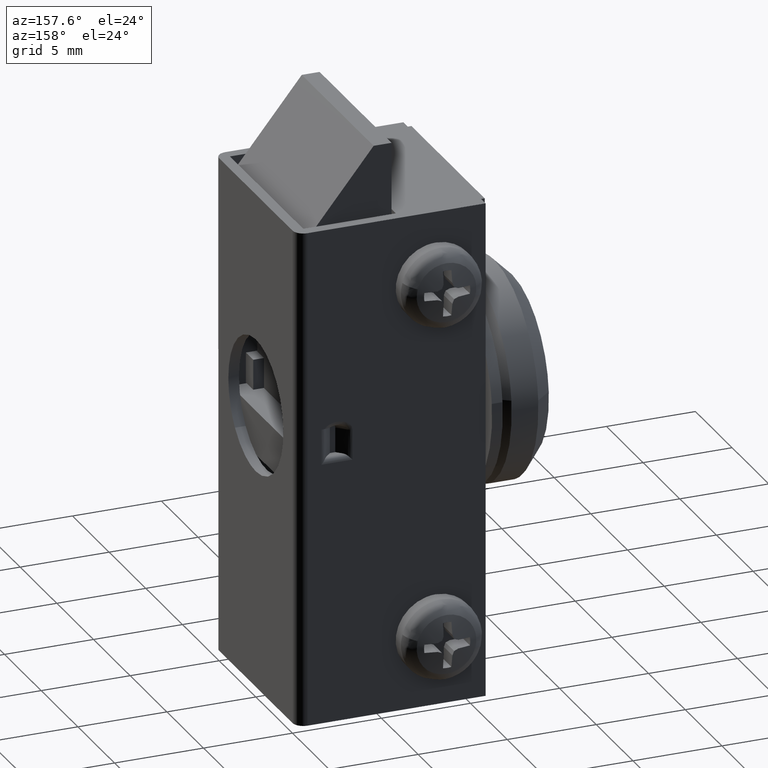
[diagram: clean part render]
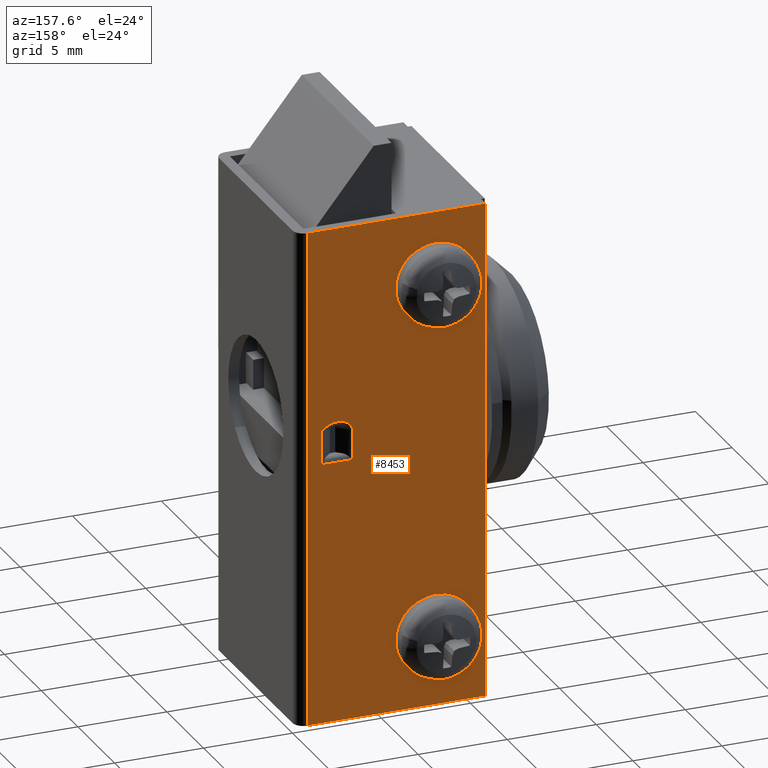
[diagram: same view with one face highlighted and labeled with its STEP entity id]
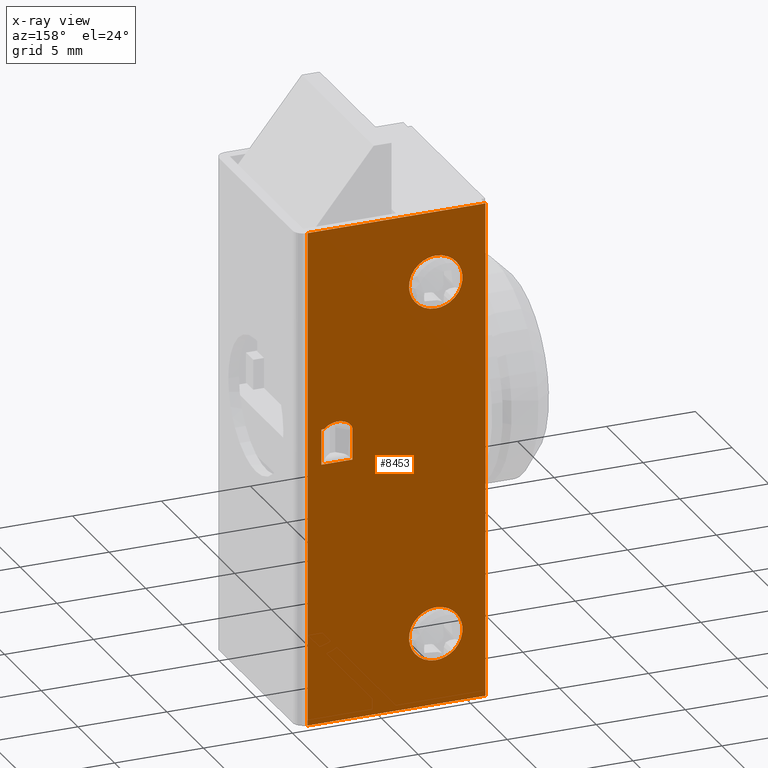
[diagram: x-ray of the same camera — body ghosted, the highlighted face saturated]
A machine part, auxiliary view. The second image highlights one B-rep face of the part: STEP entity #8453.
The next image is the same camera in x-ray: the body ghosted, the highlighted face saturated — about 0% of this face is hidden behind the body in this view.
In plain terms, the highlighted face is a freeform B-spline surface patch.
Its self-contained STEP definition (entity closure, byte-faithful):
#6009=CARTESIAN_POINT('',(-6.302784802369668,5.599990000000000,23.908427190655210));
#6010=VERTEX_POINT('',#6009);
#6016=CARTESIAN_POINT('',(-7.799986999999869,5.599990000000000,22.500000000000000));
#6017=VERTEX_POINT('',#6016);
#6018=CARTESIAN_POINT('',(-7.799986999999869,5.599990000000000,22.500000000000000));
#6019=CARTESIAN_POINT('',(-6.388927899721585,5.599990000000002,22.499999999999993));
#6020=CARTESIAN_POINT('',(-6.302784802369668,5.599990000000001,23.908427190655217));
#6028=(BOUNDED_CURVE()B_SPLINE_CURVE(2,(#6018,#6019,#6020),.UNSPECIFIED.,.F.,.U.)B_SPLINE_CURVE_WITH_KNOTS((3,3),(0.500000000000000,0.739332962232173),.UNSPECIFIED.)CURVE()GEOMETRIC_REPRESENTATION_ITEM()RATIONAL_B_SPLINE_CURVE((1.0,0.719603993294642,0.976072041652208))REPRESENTATION_ITEM(''));
#6029=EDGE_CURVE('',#6017,#6010,#6028,.T.);
#6031=CARTESIAN_POINT('',(-9.289501289544546,5.599990000000000,24.177051351992048));
#6032=VERTEX_POINT('',#6031);
#6033=CARTESIAN_POINT('',(-9.289501289544546,5.599990000000000,24.177051351992056));
#6034=CARTESIAN_POINT('',(-9.299986999999868,5.599989999999999,24.088836179484847));
#6035=CARTESIAN_POINT('',(-9.299986999999868,5.599990000000000,24.0));
#6036=CARTESIAN_POINT('',(-9.299986999999868,5.599990000000001,22.500000000000000));
#6037=CARTESIAN_POINT('',(-7.799986999999869,5.599990000000000,22.500000000000000));
#6045=(BOUNDED_CURVE()B_SPLINE_CURVE(2,(#6033,#6034,#6035,#6036,#6037),.UNSPECIFIED.,.F.,.U.)B_SPLINE_CURVE_WITH_KNOTS((3,2,3),(0.229562473514075,0.250000000000000,0.500000000000000),.UNSPECIFIED.)CURVE()GEOMETRIC_REPRESENTATION_ITEM()RATIONAL_B_SPLINE_CURVE((0.956026754184811,0.976055948331809,1.0,0.707106781186548,1.0))REPRESENTATION_ITEM(''));
#6046=EDGE_CURVE('',#6032,#6017,#6045,.T.);
#6090=CARTESIAN_POINT('',(-7.799986999999869,5.599990000000000,25.500000000000000));
#6091=VERTEX_POINT('',#6090);
#6092=CARTESIAN_POINT('',(-7.799986999999869,5.599990000000000,25.500000000000000));
#6093=CARTESIAN_POINT('',(-9.132248788914465,5.599990000000000,25.500000000000011));
#6094=CARTESIAN_POINT('',(-9.289501289544546,5.599990000000000,24.177051351992056));
#6102=(BOUNDED_CURVE()B_SPLINE_CURVE(2,(#6092,#6093,#6094),.UNSPECIFIED.,.F.,.U.)B_SPLINE_CURVE_WITH_KNOTS((3,3),(0.0,0.229562473514075),.UNSPECIFIED.)CURVE()GEOMETRIC_REPRESENTATION_ITEM()RATIONAL_B_SPLINE_CURVE((1.0,0.731050832854738,0.956026754184811))REPRESENTATION_ITEM(''));
#6103=EDGE_CURVE('',#6091,#6032,#6102,.T.);
#6105=CARTESIAN_POINT('',(-6.302784802369668,5.599990000000000,23.908427190655217));
#6106=CARTESIAN_POINT('',(-6.299986999999869,5.599990000000000,23.954170855009501));
#6107=CARTESIAN_POINT('',(-6.299986999999870,5.599990000000000,24.0));
#6108=CARTESIAN_POINT('',(-6.299986999999871,5.599990000000001,25.500000000000007));
#6109=CARTESIAN_POINT('',(-7.799986999999869,5.599990000000000,25.500000000000000));
#6117=(BOUNDED_CURVE()B_SPLINE_CURVE(2,(#6105,#6106,#6107,#6108,#6109),.UNSPECIFIED.,.F.,.U.)B_SPLINE_CURVE_WITH_KNOTS((3,2,3),(0.739332962232172,0.750000000000000,1.0),.UNSPECIFIED.)CURVE()GEOMETRIC_REPRESENTATION_ITEM()RATIONAL_B_SPLINE_CURVE((0.976072041652207,0.987502787891905,1.0,0.707106781186548,1.0))REPRESENTATION_ITEM(''));
#6118=EDGE_CURVE('',#6010,#6091,#6117,.T.);
#6381=CARTESIAN_POINT('',(-6.302784802369668,5.599990000000000,3.908427190655329));
#6382=VERTEX_POINT('',#6381);
#6388=CARTESIAN_POINT('',(-7.799986999999869,5.599990000000000,2.500000000000116));
#6389=VERTEX_POINT('',#6388);
#6390=CARTESIAN_POINT('',(-7.799986999999869,5.599990000000000,2.500000000000116));
#6391=CARTESIAN_POINT('',(-6.388927899721585,5.599990000000002,2.500000000000116));
#6392=CARTESIAN_POINT('',(-6.302784802369668,5.599990000000001,3.908427190655329));
#6400=(BOUNDED_CURVE()B_SPLINE_CURVE(2,(#6390,#6391,#6392),.UNSPECIFIED.,.F.,.U.)B_SPLINE_CURVE_WITH_KNOTS((3,3),(0.500000000000000,0.739332962232173),.UNSPECIFIED.)CURVE()GEOMETRIC_REPRESENTATION_ITEM()RATIONAL_B_SPLINE_CURVE((1.0,0.719603993294642,0.976072041652208))REPRESENTATION_ITEM(''));
#6401=EDGE_CURVE('',#6389,#6382,#6400,.T.);
#6403=CARTESIAN_POINT('',(-9.289501289544546,5.599990000000000,4.177051351992168));
#6404=VERTEX_POINT('',#6403);
#6405=CARTESIAN_POINT('',(-9.289501289544546,5.599990000000000,4.177051351992168));
#6406=CARTESIAN_POINT('',(-9.299986999999868,5.599989999999999,4.088836179484967));
#6407=CARTESIAN_POINT('',(-9.299986999999868,5.599990000000000,4.000000000000116));
#6408=CARTESIAN_POINT('',(-9.299986999999868,5.599990000000001,2.500000000000116));
#6409=CARTESIAN_POINT('',(-7.799986999999869,5.599990000000000,2.500000000000116));
#6417=(BOUNDED_CURVE()B_SPLINE_CURVE(2,(#6405,#6406,#6407,#6408,#6409),.UNSPECIFIED.,.F.,.U.)B_SPLINE_CURVE_WITH_KNOTS((3,2,3),(0.229562473514075,0.250000000000000,0.500000000000000),.UNSPECIFIED.)CURVE()GEOMETRIC_REPRESENTATION_ITEM()RATIONAL_B_SPLINE_CURVE((0.956026754184811,0.976055948331809,1.0,0.707106781186548,1.0))REPRESENTATION_ITEM(''));
#6418=EDGE_CURVE('',#6404,#6389,#6417,.T.);
#6462=CARTESIAN_POINT('',(-7.799986999999869,5.599990000000000,5.500000000000116));
#6463=VERTEX_POINT('',#6462);
#6464=CARTESIAN_POINT('',(-7.799986999999869,5.599990000000000,5.500000000000116));
#6465=CARTESIAN_POINT('',(-9.132248788914465,5.599990000000000,5.500000000000116));
#6466=CARTESIAN_POINT('',(-9.289501289544546,5.599990000000000,4.177051351992168));
#6474=(BOUNDED_CURVE()B_SPLINE_CURVE(2,(#6464,#6465,#6466),.UNSPECIFIED.,.F.,.U.)B_SPLINE_CURVE_WITH_KNOTS((3,3),(0.0,0.229562473514075),.UNSPECIFIED.)CURVE()GEOMETRIC_REPRESENTATION_ITEM()RATIONAL_B_SPLINE_CURVE((1.0,0.731050832854738,0.956026754184811))REPRESENTATION_ITEM(''));
#6475=EDGE_CURVE('',#6463,#6404,#6474,.T.);
#6477=CARTESIAN_POINT('',(-6.302784802369668,5.599990000000000,3.908427190655329));
#6478=CARTESIAN_POINT('',(-6.299986999999869,5.599990000000000,3.954170855009613));
#6479=CARTESIAN_POINT('',(-6.299986999999870,5.599990000000000,4.000000000000116));
#6480=CARTESIAN_POINT('',(-6.299986999999871,5.599990000000001,5.500000000000115));
#6481=CARTESIAN_POINT('',(-7.799986999999869,5.599990000000000,5.500000000000116));
#6489=(BOUNDED_CURVE()B_SPLINE_CURVE(2,(#6477,#6478,#6479,#6480,#6481),.UNSPECIFIED.,.F.,.U.)B_SPLINE_CURVE_WITH_KNOTS((3,2,3),(0.739332962232172,0.750000000000000,1.0),.UNSPECIFIED.)CURVE()GEOMETRIC_REPRESENTATION_ITEM()RATIONAL_B_SPLINE_CURVE((0.976072041652207,0.987502787891905,1.0,0.707106781186548,1.0))REPRESENTATION_ITEM(''));
#6490=EDGE_CURVE('',#6382,#6463,#6489,.T.);
#7018=CARTESIAN_POINT('',(-1.375751931288174,5.599990000000000,14.700000000000159));
#7019=VERTEX_POINT('',#7018);
#7033=CARTESIAN_POINT('',(-3.124248068711715,5.599990000000000,14.700000000000159));
#7034=VERTEX_POINT('',#7033);
#7035=CARTESIAN_POINT('',(-3.124248068711715,5.599990000000000,14.700000000000159));
#7036=CARTESIAN_POINT('',(-1.375751931288174,5.599990000000000,14.700000000000159));
#7037=QUASI_UNIFORM_CURVE('',1,(#7035,#7036),.UNSPECIFIED.,.F.,.U.);
#7038=EDGE_CURVE('',#7034,#7019,#7037,.T.);
#7070=CARTESIAN_POINT('',(-1.375751931288174,5.599990000000000,16.699997000000000));
#7071=VERTEX_POINT('',#7070);
#7087=CARTESIAN_POINT('',(-1.375751931288174,5.599990000000000,14.700000000000159));
#7088=CARTESIAN_POINT('',(-1.375751931288174,5.599990000000000,16.699997000000000));
#7089=QUASI_UNIFORM_CURVE('',1,(#7087,#7088),.UNSPECIFIED.,.F.,.U.);
#7090=EDGE_CURVE('',#7019,#7071,#7089,.T.);
#7123=CARTESIAN_POINT('',(-3.124248068711715,5.599990000000000,16.399996999999949));
#7124=VERTEX_POINT('',#7123);
#7125=CARTESIAN_POINT('',(-3.124248068711715,5.599990000000000,16.399996999999949));
#7126=CARTESIAN_POINT('',(-3.124248068711715,5.599990000000000,14.700000000000159));
#7127=QUASI_UNIFORM_CURVE('',1,(#7125,#7126),.UNSPECIFIED.,.F.,.U.);
#7128=EDGE_CURVE('',#7124,#7034,#7127,.T.);
#7226=CARTESIAN_POINT('',(-1.540873008452965,5.599990000000000,16.699997000000000));
#7227=VERTEX_POINT('',#7226);
#7255=CARTESIAN_POINT('',(-1.540873008452965,5.599990000000000,16.699997000000032));
#7256=CARTESIAN_POINT('',(-1.866422278405449,5.599990000000000,17.098711798759464));
#7257=CARTESIAN_POINT('',(-2.495335173558581,5.599990000000000,16.979552495773380));
#7258=CARTESIAN_POINT('',(-3.124248068711713,5.599990000000000,16.860393192787289));
#7259=CARTESIAN_POINT('',(-3.124248068711713,5.599990000000000,16.399996999999949));
#7267=(BOUNDED_CURVE()B_SPLINE_CURVE(2,(#7255,#7256,#7257,#7258,#7259),.UNSPECIFIED.,.F.,.U.)B_SPLINE_CURVE_WITH_KNOTS((3,2,3),(0.0,0.500000000000000,1.0),.UNSPECIFIED.)CURVE()GEOMETRIC_REPRESENTATION_ITEM()RATIONAL_B_SPLINE_CURVE((1.0,0.793353340291258,1.0,0.793353340291258,1.0))REPRESENTATION_ITEM(''));
#7268=EDGE_CURVE('',#7227,#7124,#7267,.T.);
#7340=CARTESIAN_POINT('',(-1.540873008452965,5.599990000000000,16.699997000000000));
#7341=CARTESIAN_POINT('',(-1.375751931288174,5.599990000000000,16.699997000000000));
#7342=QUASI_UNIFORM_CURVE('',1,(#7340,#7341),.UNSPECIFIED.,.F.,.U.);
#7343=EDGE_CURVE('',#7227,#7071,#7342,.T.);
#7948=CARTESIAN_POINT('',(-0.600000000000000,5.599990000000000,0.0));
#7949=VERTEX_POINT('',#7948);
#7965=CARTESIAN_POINT('',(-0.600000000000000,5.599990000000000,28.0));
#7966=VERTEX_POINT('',#7965);
#7967=CARTESIAN_POINT('',(-0.600000000000000,5.599990000000000,28.0));
#7968=CARTESIAN_POINT('',(-0.600000000000000,5.599990000000000,0.0));
#7969=QUASI_UNIFORM_CURVE('',1,(#7967,#7968),.UNSPECIFIED.,.F.,.U.);
#7970=EDGE_CURVE('',#7966,#7949,#7969,.T.);
#8098=CARTESIAN_POINT('',(-10.600006000000119,5.599990000000000,28.0));
#8099=VERTEX_POINT('',#8098);
#8100=CARTESIAN_POINT('',(-0.600000000000000,5.599990000000000,28.0));
#8101=CARTESIAN_POINT('',(-10.600006000000119,5.599990000000000,28.0));
#8102=QUASI_UNIFORM_CURVE('',1,(#8100,#8101),.UNSPECIFIED.,.F.,.U.);
#8103=EDGE_CURVE('',#7966,#8099,#8102,.T.);
#8201=CARTESIAN_POINT('',(-10.600006000000119,5.599990000000000,0.0));
#8202=VERTEX_POINT('',#8201);
#8203=CARTESIAN_POINT('',(-10.600006000000119,5.599990000000000,0.0));
#8204=CARTESIAN_POINT('',(-10.600006000000119,5.599990000000000,28.0));
#8205=QUASI_UNIFORM_CURVE('',1,(#8203,#8204),.UNSPECIFIED.,.F.,.U.);
#8206=EDGE_CURVE('',#8202,#8099,#8205,.T.);
#8310=CARTESIAN_POINT('',(-0.600000000000000,5.599990000000000,0.0));
#8311=CARTESIAN_POINT('',(-10.600006000000119,5.599990000000000,0.0));
#8312=QUASI_UNIFORM_CURVE('',1,(#8310,#8311),.UNSPECIFIED.,.F.,.U.);
#8313=EDGE_CURVE('',#7949,#8202,#8312,.T.);
#8423=CARTESIAN_POINT('',(-11.099506374191080,5.599990000000000,-1.398599945730568));
#8424=CARTESIAN_POINT('',(-11.099506374191080,5.599990000000000,29.398600696749099));
#8425=CARTESIAN_POINT('',(-0.100499446995002,5.599990000000000,-1.398599945730568));
#8426=CARTESIAN_POINT('',(-0.100499446995002,5.599990000000000,29.398600696749099));
#8427=B_SPLINE_SURFACE_WITH_KNOTS('',1,1,((#8423,#8425),(#8424,#8426)),.UNSPECIFIED.,.F.,.F.,.U.,(2,2),(2,2),(0.0,30.797200642479659),(0.0,10.999006927196080),.UNSPECIFIED.);
#8428=ORIENTED_EDGE('',*,*,#8103,.F.);
#8429=ORIENTED_EDGE('',*,*,#7970,.T.);
#8430=ORIENTED_EDGE('',*,*,#8313,.T.);
#8431=ORIENTED_EDGE('',*,*,#8206,.T.);
#8432=EDGE_LOOP('',(#8428,#8429,#8430,#8431));
#8433=FACE_OUTER_BOUND('',#8432,.T.);
#8434=ORIENTED_EDGE('',*,*,#7343,.F.);
#8435=ORIENTED_EDGE('',*,*,#7268,.T.);
#8436=ORIENTED_EDGE('',*,*,#7128,.T.);
#8437=ORIENTED_EDGE('',*,*,#7038,.T.);
#8438=ORIENTED_EDGE('',*,*,#7090,.T.);
#8439=EDGE_LOOP('',(#8434,#8435,#8436,#8437,#8438));
#8440=FACE_BOUND('',#8439,.T.);
#8441=ORIENTED_EDGE('',*,*,#6401,.T.);
#8442=ORIENTED_EDGE('',*,*,#6490,.T.);
#8443=ORIENTED_EDGE('',*,*,#6475,.T.);
#8444=ORIENTED_EDGE('',*,*,#6418,.T.);
#8445=EDGE_LOOP('',(#8441,#8442,#8443,#8444));
#8446=FACE_BOUND('',#8445,.T.);
#8447=ORIENTED_EDGE('',*,*,#6029,.T.);
#8448=ORIENTED_EDGE('',*,*,#6118,.T.);
#8449=ORIENTED_EDGE('',*,*,#6103,.T.);
#8450=ORIENTED_EDGE('',*,*,#6046,.T.);
#8451=EDGE_LOOP('',(#8447,#8448,#8449,#8450));
#8452=FACE_BOUND('',#8451,.T.);
#8453=ADVANCED_FACE('',(#8433,#8440,#8446,#8452),#8427,.T.);